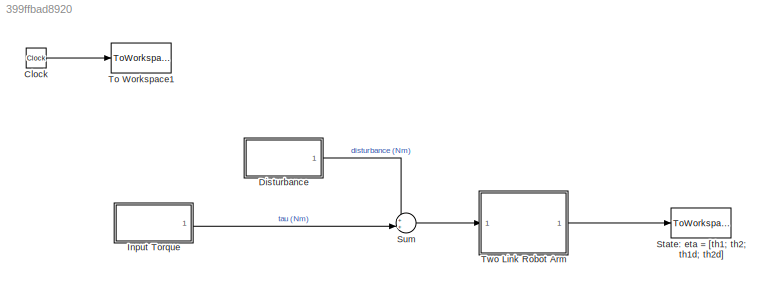
MODEL slx_399ffbad8920
KIND model
CONFIG AbsTol = auto
CONFIG EnableMultiTasking = off
CONFIG FixedStep = auto
CONFIG MaxStep = auto
CONFIG MinStep = auto
CONFIG RelTol = 1e-5
CONFIG SampleTimeConstraint = Unconstrained
CONFIG Solver = VariableStepAuto
CONFIG SolverName = VariableStepAuto
CONFIG StartTime = 0.0
CONFIG StopTime = 5
BLOCK [Clock] Clock
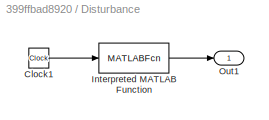
BLOCK [SubSystem] Disturbance
  Ports = [0, 1]
  RequestExecContextInheritance = off
  Variant = off
BLOCK [Clock] Disturbance/Clock1
BLOCK [MATLABFcn] Disturbance/Interpreted MATLAB Function
  MATLABFcn = fh(u)
  Output1D = off
  OutputDimensions = dim
  Ports = [1, 1]
BLOCK [Outport] Disturbance/Out1
  IconDisplay = Port number
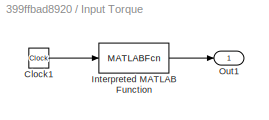
BLOCK [SubSystem] Input Torque
  Ports = [0, 1]
  RequestExecContextInheritance = off
  Variant = off
BLOCK [Clock] Input Torque/Clock1
BLOCK [MATLABFcn] Input Torque/Interpreted MATLAB Function
  MATLABFcn = fh(u)
  Output1D = off
  OutputDimensions = dim
  Ports = [1, 1]
BLOCK [Outport] Input Torque/Out1
  IconDisplay = Port number
BLOCK [ToWorkspace] State: eta = [th1; th2; th1d; th2d]
  FixptAsFi = on
  MaxDataPoints = inf
  Ports = [1]
  SampleTime = -1
  Save2DSignal = 3-D array (concatenate along third dimension)
  VariableName = eta
BLOCK [Sum] Sum
  IconShape = round
  InputSameDT = off
  Inputs = ++|
  OutDataTypeStr = Inherit: Inherit via internal rule
  Ports = [2, 1]
  SaturateOnIntegerOverflow = off
BLOCK [ToWorkspace] To Workspace1
  FixptAsFi = on
  MaxDataPoints = inf
  Ports = [1]
  SampleTime = -1
  Save2DSignal = 3-D array (concatenate along third dimension)
  VariableName = tsim
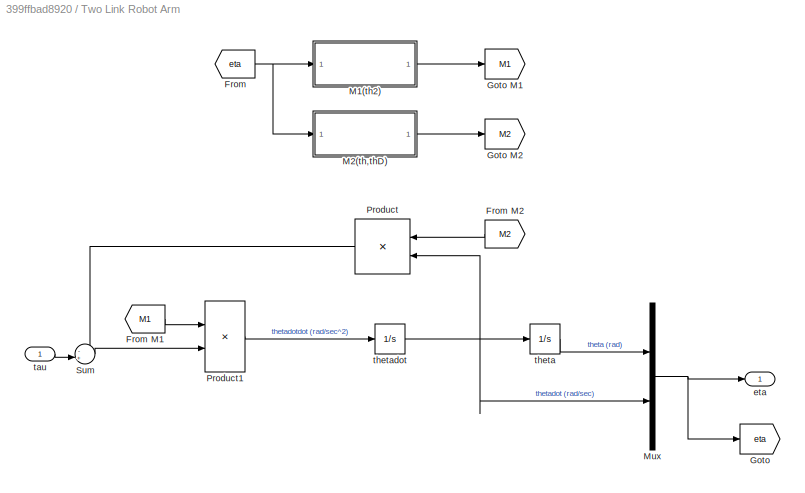
BLOCK [SubSystem] Two Link Robot Arm
  Ports = [1, 1]
  RequestExecContextInheritance = off
  Variant = off
BLOCK [From] Two Link Robot Arm/From
  GotoTag = eta
BLOCK [From] Two Link Robot Arm/From M1
  GotoTag = M1
BLOCK [From] Two Link Robot Arm/From M2
  GotoTag = M2
BLOCK [Goto] Two Link Robot Arm/Goto
  GotoTag = eta
BLOCK [Goto] Two Link Robot Arm/Goto M1
  GotoTag = M1
BLOCK [Goto] Two Link Robot Arm/Goto M2
  GotoTag = M2
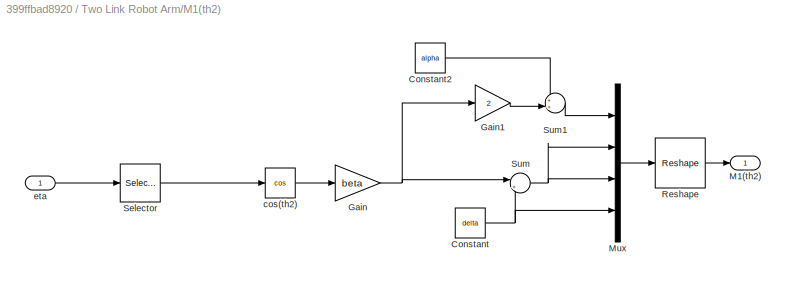
BLOCK [SubSystem] Two Link Robot Arm/M1(th2)
  Ports = [1, 1]
  RequestExecContextInheritance = off
  TreatAsAtomicUnit = on
  Variant = off
BLOCK [Constant] Two Link Robot Arm/M1(th2)/Constant
  Value = delta
BLOCK [Constant] Two Link Robot Arm/M1(th2)/Constant2
  Value = alpha
BLOCK [Gain] Two Link Robot Arm/M1(th2)/Gain
  Gain = beta
  OutDataTypeStr = Inherit: Inherit via internal rule
  ParamDataTypeStr = Inherit: Inherit via internal rule
  SaturateOnIntegerOverflow = off
BLOCK [Gain] Two Link Robot Arm/M1(th2)/Gain1
  Gain = 2
  OutDataTypeStr = Inherit: Inherit via internal rule
  ParamDataTypeStr = Inherit: Inherit via internal rule
  SaturateOnIntegerOverflow = off
BLOCK [Outport] Two Link Robot Arm/M1(th2)/M1(th2)
  IconDisplay = Port number
BLOCK [Mux] Two Link Robot Arm/M1(th2)/Mux
  DisplayOption = bar
  Ports = [4, 1]
BLOCK [Reshape] Two Link Robot Arm/M1(th2)/Reshape
  OutputDimensionality = Customize
  OutputDimensions = [2 2]
  Ports = [1, 1]
BLOCK [Selector] Two Link Robot Arm/M1(th2)/Selector
  IndexOptions = Index vector (dialog)
  Indices = 2
  InputPortWidth = 4
  OutputSizes = 1
  Ports = [1, 1]
BLOCK [Sum] Two Link Robot Arm/M1(th2)/Sum
  IconShape = round
  InputSameDT = off
  Inputs = |++
  OutDataTypeStr = Inherit: Inherit via internal rule
  Ports = [2, 1]
  SaturateOnIntegerOverflow = off
BLOCK [Sum] Two Link Robot Arm/M1(th2)/Sum1
  IconShape = round
  InputSameDT = off
  Inputs = ++|
  OutDataTypeStr = Inherit: Inherit via internal rule
  Ports = [2, 1]
  SaturateOnIntegerOverflow = off
BLOCK [Trigonometry] Two Link Robot Arm/M1(th2)/cos(th2)
  Operator = cos
  Ports = [1, 1]
BLOCK [Inport] Two Link Robot Arm/M1(th2)/eta
  IconDisplay = Port number
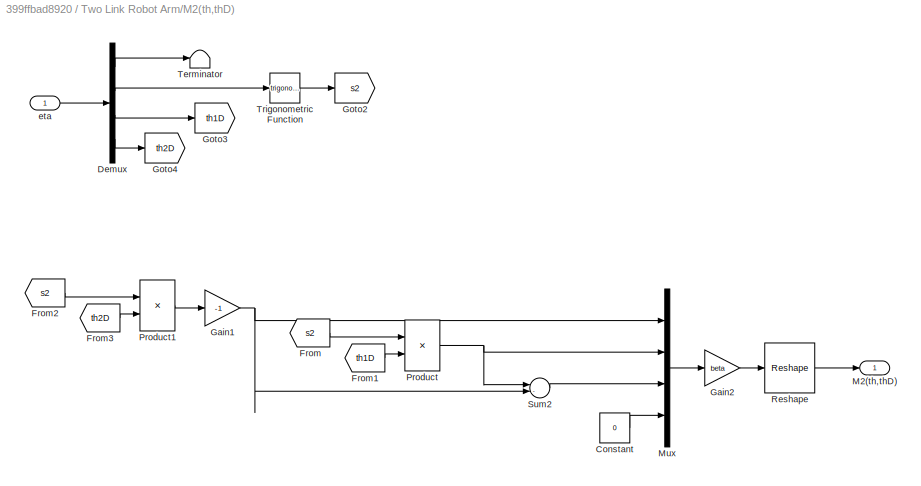
BLOCK [SubSystem] Two Link Robot Arm/M2(th,thD)
  Ports = [1, 1]
  RequestExecContextInheritance = off
  TreatAsAtomicUnit = on
  Variant = off
BLOCK [Constant] Two Link Robot Arm/M2(th,thD)/Constant
  Value = 0
BLOCK [Demux] Two Link Robot Arm/M2(th,thD)/Demux
  DisplayOption = bar
  Ports = [1, 4]
BLOCK [From] Two Link Robot Arm/M2(th,thD)/From
  GotoTag = s2
BLOCK [From] Two Link Robot Arm/M2(th,thD)/From1
  GotoTag = th1D
BLOCK [From] Two Link Robot Arm/M2(th,thD)/From2
  GotoTag = s2
BLOCK [From] Two Link Robot Arm/M2(th,thD)/From3
  GotoTag = th2D
BLOCK [Gain] Two Link Robot Arm/M2(th,thD)/Gain1
  Gain = -1
  OutDataTypeStr = Inherit: Inherit via internal rule
  ParamDataTypeStr = Inherit: Inherit via internal rule
  SaturateOnIntegerOverflow = off
BLOCK [Gain] Two Link Robot Arm/M2(th,thD)/Gain2
  Gain = beta
  OutDataTypeStr = Inherit: Inherit via internal rule
  ParamDataTypeStr = Inherit: Inherit via internal rule
  SaturateOnIntegerOverflow = off
BLOCK [Goto] Two Link Robot Arm/M2(th,thD)/Goto2
  GotoTag = s2
BLOCK [Goto] Two Link Robot Arm/M2(th,thD)/Goto3
  GotoTag = th1D
BLOCK [Goto] Two Link Robot Arm/M2(th,thD)/Goto4
  GotoTag = th2D
BLOCK [Outport] Two Link Robot Arm/M2(th,thD)/M2(th,thD)
  IconDisplay = Port number
BLOCK [Mux] Two Link Robot Arm/M2(th,thD)/Mux
  DisplayOption = bar
  Ports = [4, 1]
BLOCK [Product] Two Link Robot Arm/M2(th,thD)/Product
  InputSameDT = off
  OutDataTypeStr = Inherit: Inherit via internal rule
  Ports = [2, 1]
  RndMeth = Floor
  SaturateOnIntegerOverflow = off
BLOCK [Product] Two Link Robot Arm/M2(th,thD)/Product1
  InputSameDT = off
  OutDataTypeStr = Inherit: Inherit via internal rule
  Ports = [2, 1]
  RndMeth = Floor
  SaturateOnIntegerOverflow = off
BLOCK [Reshape] Two Link Robot Arm/M2(th,thD)/Reshape
  OutputDimensionality = Customize
  OutputDimensions = [2 2]
  Ports = [1, 1]
BLOCK [Sum] Two Link Robot Arm/M2(th,thD)/Sum2
  IconShape = round
  InputSameDT = off
  Inputs = |-+
  OutDataTypeStr = Inherit: Inherit via internal rule
  Ports = [2, 1]
  SaturateOnIntegerOverflow = off
BLOCK [Terminator] Two Link Robot Arm/M2(th,thD)/Terminator
BLOCK [Trigonometry] Two Link Robot Arm/M2(th,thD)/Trigonometric Function
  Ports = [1, 1]
BLOCK [Inport] Two Link Robot Arm/M2(th,thD)/eta
  IconDisplay = Port number
BLOCK [Mux] Two Link Robot Arm/Mux
  DisplayOption = bar
  Inputs = 2
  Ports = [2, 1]
BLOCK [Product] Two Link Robot Arm/Product
  InputSameDT = off
  Inputs = **
  Multiplication = Matrix(*)
  OutDataTypeStr = Inherit: Inherit via internal rule
  Ports = [2, 1]
  RndMeth = Floor
  SaturateOnIntegerOverflow = off
BLOCK [Product] Two Link Robot Arm/Product1
  InputSameDT = off
  Inputs = /*
  Multiplication = Matrix(*)
  OutDataTypeStr = Inherit: Inherit via internal rule
  Ports = [2, 1]
  RndMeth = Floor
  SaturateOnIntegerOverflow = off
BLOCK [Sum] Two Link Robot Arm/Sum
  IconShape = round
  InputSameDT = off
  Inputs = -+|
  OutDataTypeStr = Inherit: Inherit via internal rule
  Ports = [2, 1]
  SaturateOnIntegerOverflow = off
BLOCK [Outport] Two Link Robot Arm/eta
  IconDisplay = Port number
BLOCK [Inport] Two Link Robot Arm/tau
  IconDisplay = Port number
BLOCK [Integrator] Two Link Robot Arm/theta
  InitialCondition = eta0(1:2)
  Ports = [1, 1]
BLOCK [Integrator] Two Link Robot Arm/thetadot
  InitialCondition = eta0(3:4)
  Ports = [1, 1]
LINE Clock:1 -> To Workspace1:1
LINE Disturbance/Clock1:1 -> Disturbance/Interpreted MATLAB Function:1
LINE Disturbance/Interpreted MATLAB Function:1 -> Disturbance/Out1:1
LINE Disturbance:1 -> Sum:1
LINE Input Torque/Clock1:1 -> Input Torque/Interpreted MATLAB Function:1
LINE Input Torque/Interpreted MATLAB Function:1 -> Input Torque/Out1:1
LINE Input Torque:1 -> Sum:2
LINE Sum:1 -> Two Link Robot Arm:1
LINE Two Link Robot Arm/From M1:1 -> Two Link Robot Arm/Product1:1
LINE Two Link Robot Arm/From M2:1 -> Two Link Robot Arm/Product:1
NET Two Link Robot Arm/From:1 -> Two Link Robot Arm/M1(th2):1, Two Link Robot Arm/M2(th,thD):1
LINE Two Link Robot Arm/M1(th2)/Constant2:1 -> Two Link Robot Arm/M1(th2)/Sum1:1
NET Two Link Robot Arm/M1(th2)/Constant:1 -> Two Link Robot Arm/M1(th2)/Mux:4, Two Link Robot Arm/M1(th2)/Sum:2
LINE Two Link Robot Arm/M1(th2)/Gain1:1 -> Two Link Robot Arm/M1(th2)/Sum1:2
NET Two Link Robot Arm/M1(th2)/Gain:1 -> Two Link Robot Arm/M1(th2)/Gain1:1, Two Link Robot Arm/M1(th2)/Sum:1
LINE Two Link Robot Arm/M1(th2)/Mux:1 -> Two Link Robot Arm/M1(th2)/Reshape:1
LINE Two Link Robot Arm/M1(th2)/Reshape:1 -> Two Link Robot Arm/M1(th2)/M1(th2):1
LINE Two Link Robot Arm/M1(th2)/Selector:1 -> Two Link Robot Arm/M1(th2)/cos(th2):1
LINE Two Link Robot Arm/M1(th2)/Sum1:1 -> Two Link Robot Arm/M1(th2)/Mux:1
NET Two Link Robot Arm/M1(th2)/Sum:1 -> Two Link Robot Arm/M1(th2)/Mux:2, Two Link Robot Arm/M1(th2)/Mux:3
LINE Two Link Robot Arm/M1(th2)/cos(th2):1 -> Two Link Robot Arm/M1(th2)/Gain:1
LINE Two Link Robot Arm/M1(th2)/eta:1 -> Two Link Robot Arm/M1(th2)/Selector:1
LINE Two Link Robot Arm/M1(th2):1 -> Two Link Robot Arm/Goto M1:1
LINE Two Link Robot Arm/M2(th,thD)/Constant:1 -> Two Link Robot Arm/M2(th,thD)/Mux:4
LINE Two Link Robot Arm/M2(th,thD)/Demux:1 -> Two Link Robot Arm/M2(th,thD)/Terminator:1
LINE Two Link Robot Arm/M2(th,thD)/Demux:2 -> Two Link Robot Arm/M2(th,thD)/Trigonometric Function:1
LINE Two Link Robot Arm/M2(th,thD)/Demux:3 -> Two Link Robot Arm/M2(th,thD)/Goto3:1
LINE Two Link Robot Arm/M2(th,thD)/Demux:4 -> Two Link Robot Arm/M2(th,thD)/Goto4:1
LINE Two Link Robot Arm/M2(th,thD)/From1:1 -> Two Link Robot Arm/M2(th,thD)/Product:2
LINE Two Link Robot Arm/M2(th,thD)/From2:1 -> Two Link Robot Arm/M2(th,thD)/Product1:1
LINE Two Link Robot Arm/M2(th,thD)/From3:1 -> Two Link Robot Arm/M2(th,thD)/Product1:2
LINE Two Link Robot Arm/M2(th,thD)/From:1 -> Two Link Robot Arm/M2(th,thD)/Product:1
NET Two Link Robot Arm/M2(th,thD)/Gain1:1 -> Two Link Robot Arm/M2(th,thD)/Mux:1, Two Link Robot Arm/M2(th,thD)/Sum2:2
LINE Two Link Robot Arm/M2(th,thD)/Gain2:1 -> Two Link Robot Arm/M2(th,thD)/Reshape:1
LINE Two Link Robot Arm/M2(th,thD)/Mux:1 -> Two Link Robot Arm/M2(th,thD)/Gain2:1
LINE Two Link Robot Arm/M2(th,thD)/Product1:1 -> Two Link Robot Arm/M2(th,thD)/Gain1:1
NET Two Link Robot Arm/M2(th,thD)/Product:1 -> Two Link Robot Arm/M2(th,thD)/Mux:2, Two Link Robot Arm/M2(th,thD)/Sum2:1
LINE Two Link Robot Arm/M2(th,thD)/Reshape:1 -> Two Link Robot Arm/M2(th,thD)/M2(th,thD):1
LINE Two Link Robot Arm/M2(th,thD)/Sum2:1 -> Two Link Robot Arm/M2(th,thD)/Mux:3
LINE Two Link Robot Arm/M2(th,thD)/Trigonometric Function:1 -> Two Link Robot Arm/M2(th,thD)/Goto2:1
LINE Two Link Robot Arm/M2(th,thD)/eta:1 -> Two Link Robot Arm/M2(th,thD)/Demux:1
LINE Two Link Robot Arm/M2(th,thD):1 -> Two Link Robot Arm/Goto M2:1
NET Two Link Robot Arm/Mux:1 -> Two Link Robot Arm/Goto:1, Two Link Robot Arm/eta:1
LINE Two Link Robot Arm/Product1:1 -> Two Link Robot Arm/thetadot:1
LINE Two Link Robot Arm/Product:1 -> Two Link Robot Arm/Sum:1
LINE Two Link Robot Arm/Sum:1 -> Two Link Robot Arm/Product1:2
LINE Two Link Robot Arm/tau:1 -> Two Link Robot Arm/Sum:2
LINE Two Link Robot Arm/theta:1 -> Two Link Robot Arm/Mux:1
NET Two Link Robot Arm/thetadot:1 -> Two Link Robot Arm/Mux:2, Two Link Robot Arm/Product:2, Two Link Robot Arm/theta:1
LINE Two Link Robot Arm:1 -> State: eta = [th1; th2; th1d; th2d]:1
note: NET lines group one-source signal fan-out (src -> all destinations, sorted); 1:1 wires keep LINE
